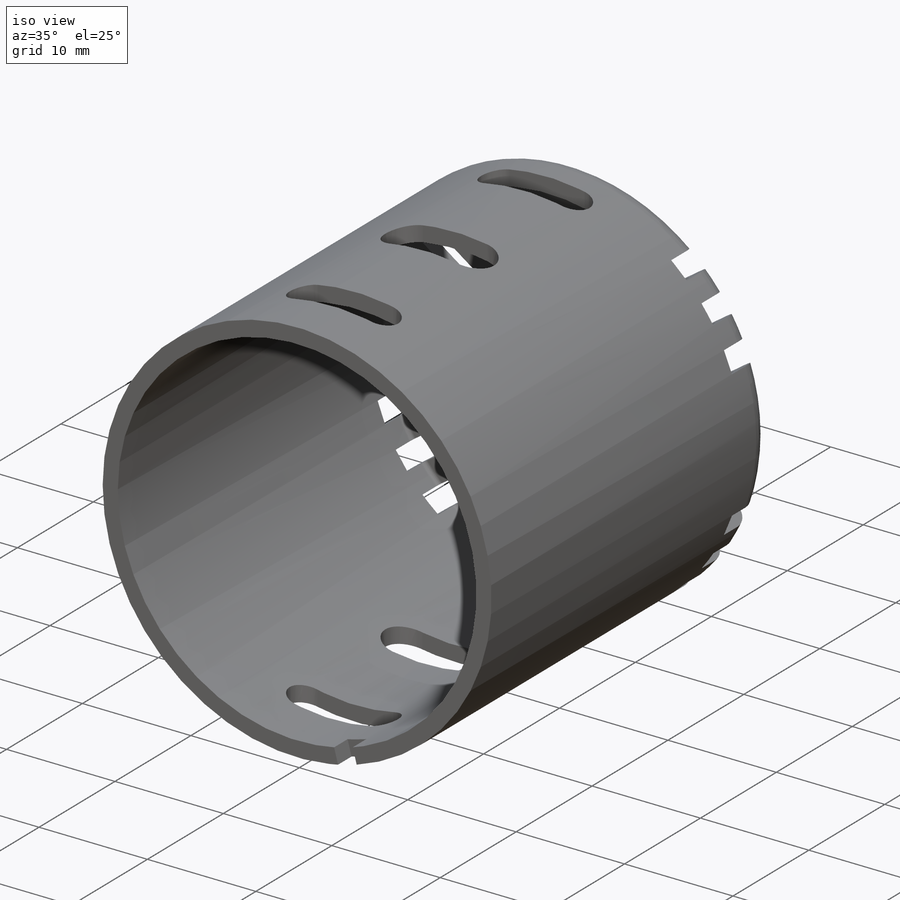
[diagram: iso view]
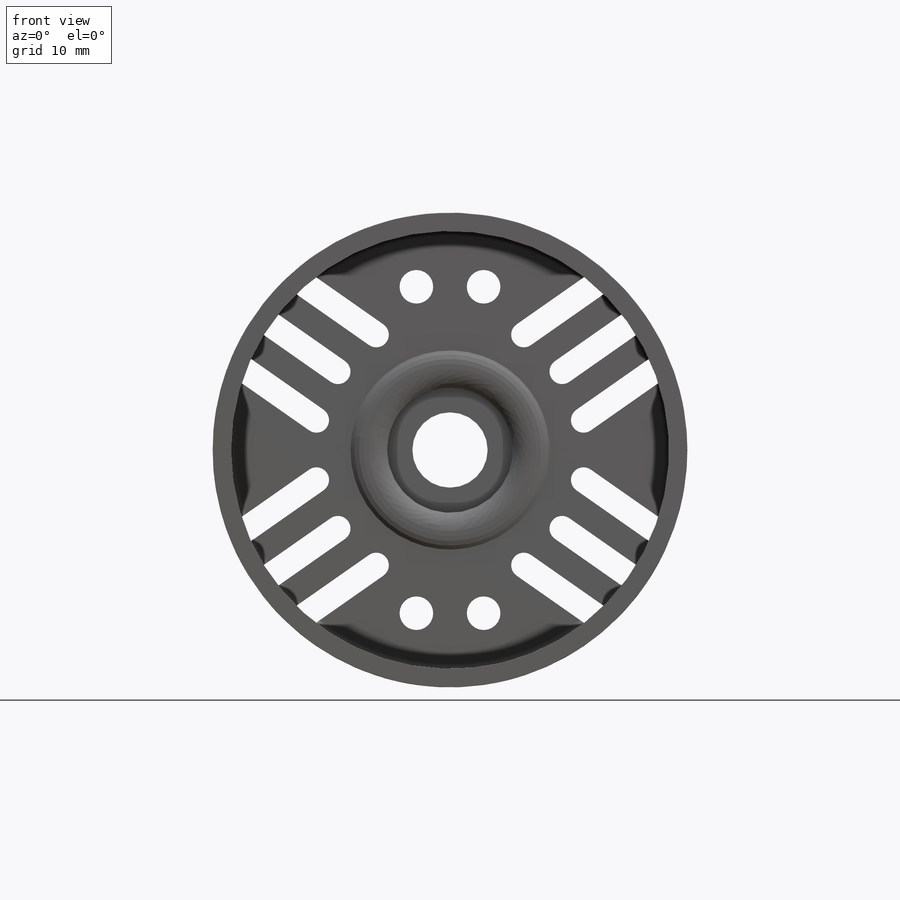
[diagram: front view]
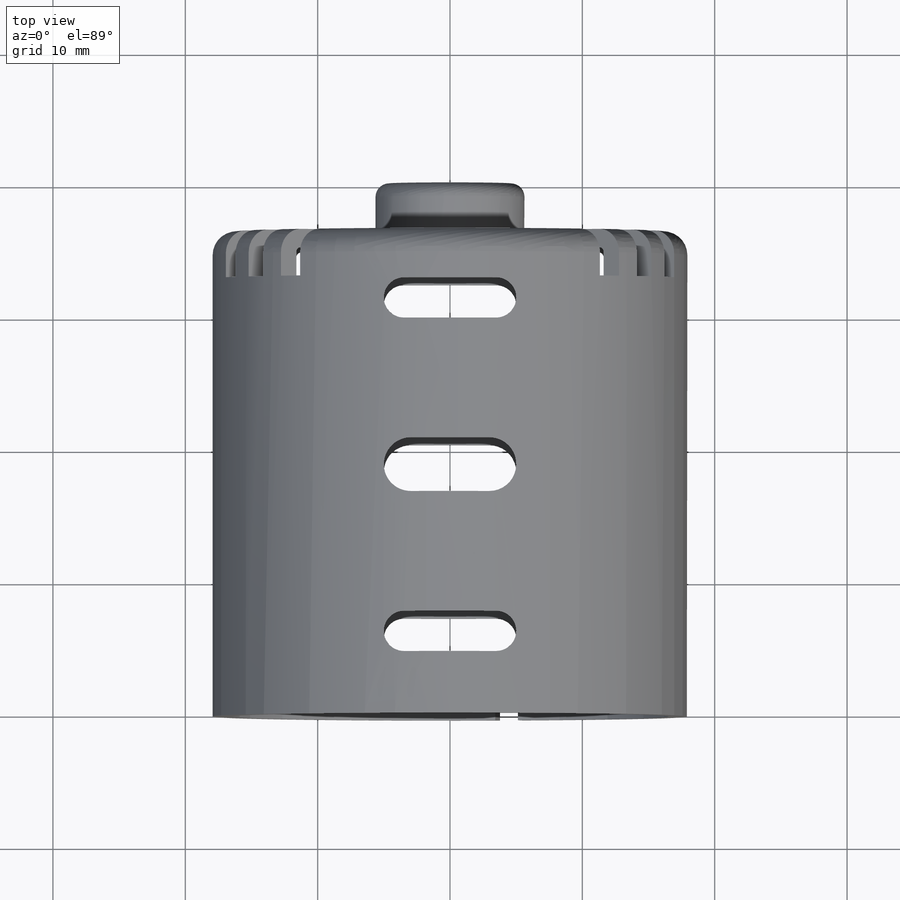
[diagram: top view]
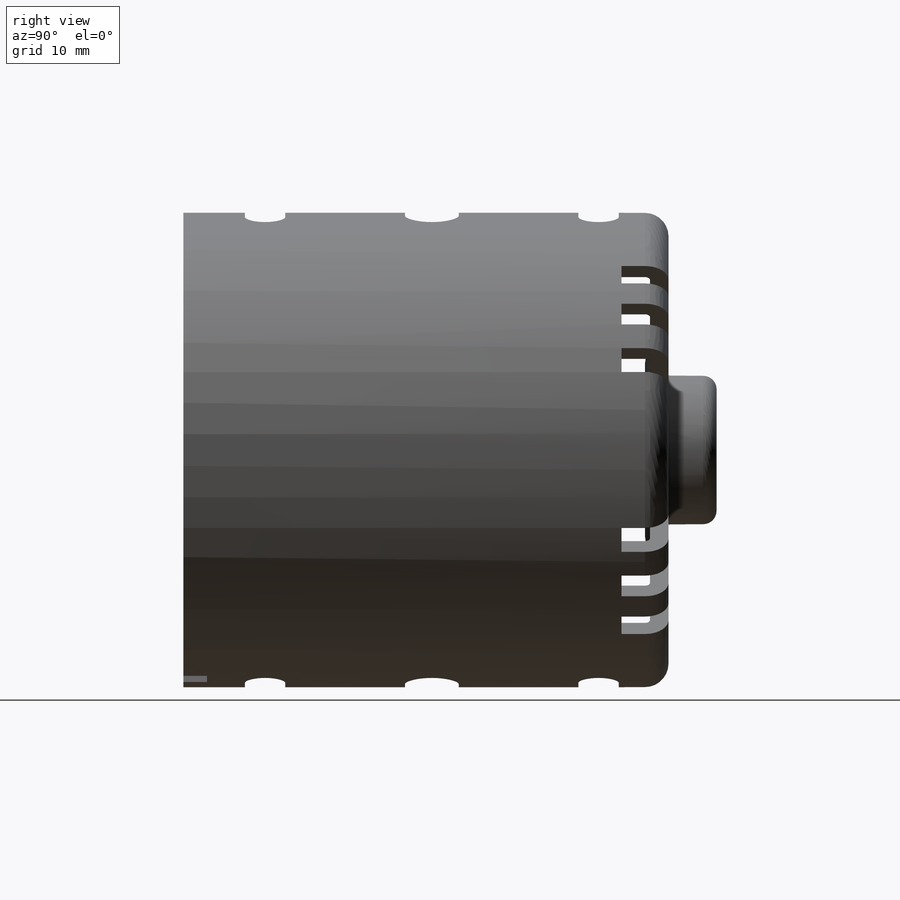
[diagram: right view]
SOLIDWORKS PART (.sldprt)
format: sldprt  version: not decoded by parser v0  size: 546,304 bytes
history: native  units: mm
features: sketch x8, cut_extrude x7, material x1, revolve x1, shell x1 (+11 scaffold rows collapsed)
feature tree (29):
  scaffold x11  (default folders/planes/origin — collapsed)
  material  "Material <not specified>"
  sketch  "Sketch1"  dims[c1.D5=1.778mm c1.D6=1.016mm c1.D1=0.508mm c1.D2=0.127mm c1.D3=0.2032mm c2.D1=5.6261mm c2.D2=3.6322mm c2.D3=17.9324mm c2.D4=36.6522mm c2.D7=2.8448mm c2.D8=0.381mm c2.D9=0.381mm c2.D10=10.5283mm c3.D10=90.0deg c4.D10=1.016mm]
  revolve  "Revolve1"  Angle=360deg
  sketch  "Sketch2"
  cut_extrude  "Cut-Extrude1"  [1 undecoded]
  shell  "Shell1"  Thickness=1.397mm
  sketch  "Sketch3"
  cut_extrude  "Cut-Extrude2"  Depth=39.37mm
  sketch  "Sketch5"  dims[D2=9.4996mm D1=0.0mm]
  cut_extrude  "Cut-Extrude7"  Depth=25.4mm
  sketch  "Sketch6"  dims[c1.D1=~31.222792mm c2.D1=35.0deg c2.D3=1.905mm c2.D6=1.905mm c2.D7=1.905mm c2.D2=2.54mm c2.D4=3.937mm c2.D5=3.937mm]
  cut_extrude  "Cut-Extrude8"  Depth=3.556mm
  sketch  "Sketch7"  dims[D1=2.54mm D2=2.54mm D3=12.3317mm]
  cut_extrude  "Cut-Extrude9"  [1 undecoded]
  sketch  "Sketch8"  dims[c1.D5=1.524mm c1.D1=6.1722mm c1.D4=3.048mm c2.D5=6.9596mm c2.D6=4.064mm c2.D7=5.9436mm c2.D2=25.1968mm c2.D3=12.5984mm]
  cut_extrude  "Cut-Extrude10"  [1 undecoded]
  sketch  "Sketch10"  dims[c1.D1=~20.330667mm c2.D1=30.0deg c3.D1=0.889mm c3.D2=1.778mm c3.D3=~15.529914mm c4.D3=15.0deg c4.D1=0.889mm c4.D2=0.889mm]
  cut_extrude  "Cut-Extrude11"  Depth=1.778mm
decode coverage: 12 of 17 modeling features carry decoded parameters
note: ~ marks probable driven/reference dimensions
note: 3 parameter values undecoded
summary: no parameter record found for 3 features
note: suppression state not decoded; provenance and decode notes live in map.json
